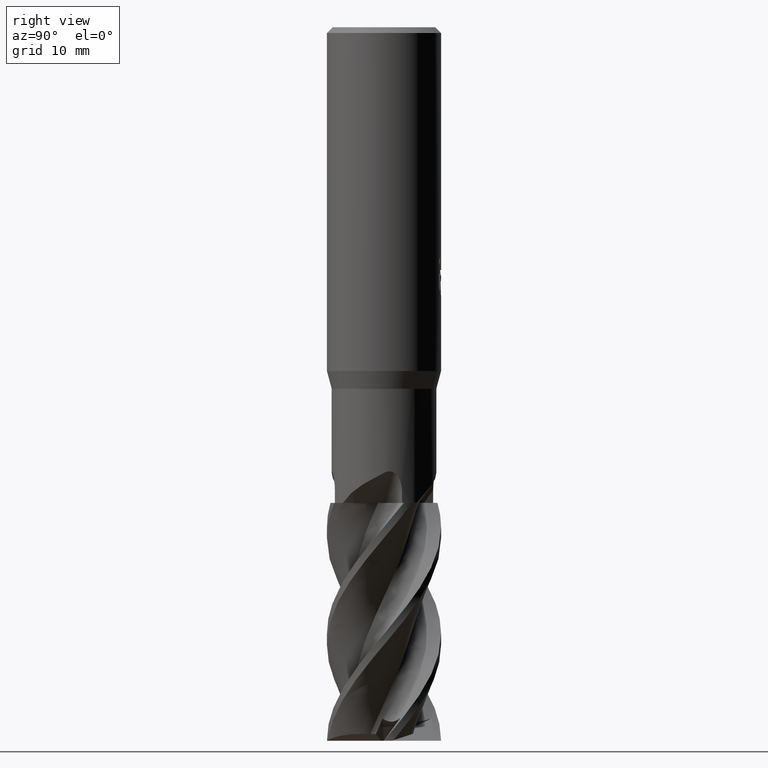
[diagram: clean part render]
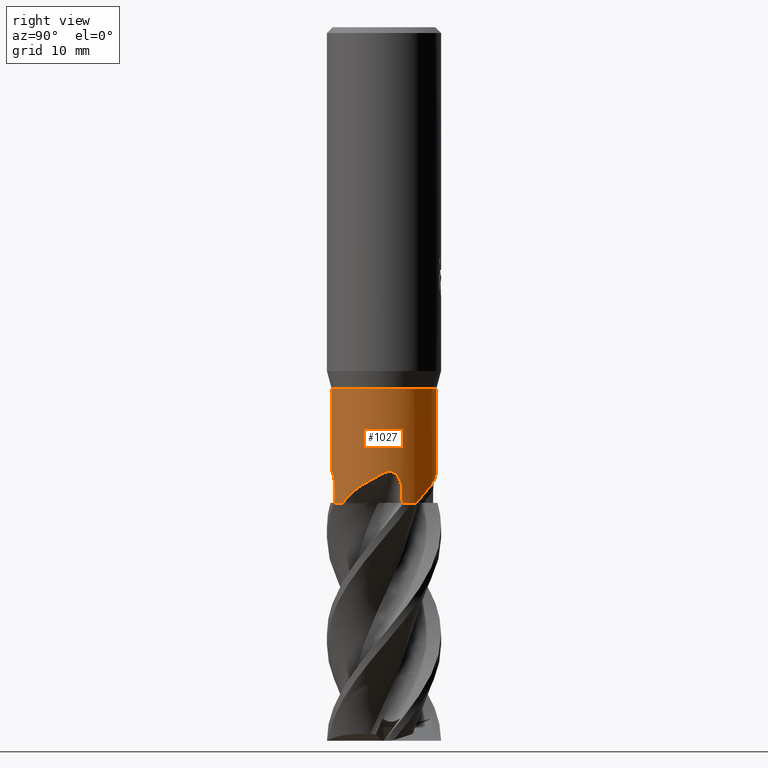
[diagram: same view with one face highlighted and labeled with its STEP entity id]
A machine part, right view. The second image highlights one B-rep face of the part: STEP entity #1027.
In plain terms, the highlighted cylindrical surface (partial cylindrical patch) has radius 5.5 mm, axis along (-0, -0, 1).
Its self-contained STEP definition (entity closure, byte-faithful):
#505=EDGE_CURVE('',#565,#1069,#1460,.T.);
#529=EDGE_CURVE('',#679,#809,#1486,.T.);
#565=VERTEX_POINT('',#1525);
#611=EDGE_CURVE('',#1377,#851,#1576,.T.);
#659=EDGE_CURVE('',#897,#849,#1629,.T.);
#679=VERTEX_POINT('',#1650);
#713=EDGE_CURVE('',#849,#985,#1686,.T.);
#809=VERTEX_POINT('',#1795);
#849=VERTEX_POINT('',#1837);
#851=VERTEX_POINT('',#1839);
#895=EDGE_CURVE('',#897,#851,#1886,.T.);
#897=VERTEX_POINT('',#1888);
#985=VERTEX_POINT('',#1981);
#1005=VERTEX_POINT('',#2003);
#1007=EDGE_CURVE('',#565,#1005,#2005,.T.);
#1019=EDGE_CURVE('',#679,#1069,#2018,.T.);
#1027=ADVANCED_FACE('',(#2026),#2027,.T.);
#1055=VERTEX_POINT('',#2060);
#1069=VERTEX_POINT('',#2076);
#1163=EDGE_CURVE('',#1055,#1377,#2181,.T.);
#1229=EDGE_CURVE('',#1341,#1055,#2255,.T.);
#1325=EDGE_CURVE('',#985,#1005,#2359,.T.);
#1341=VERTEX_POINT('',#2375);
#1377=VERTEX_POINT('',#2416);
#1385=EDGE_CURVE('',#1341,#809,#2424,.T.);
#1460=B_SPLINE_CURVE_WITH_KNOTS('',3,(#2504,#2505,#2506,#2507,#2508,#2509,#2510,#2511),.UNSPECIFIED.,.F.,.F.,(4,2,2,4),(0.0,2.05260454001306,4.32936393877704,6.14717379635785),.UNSPECIFIED.);
#1486=CIRCLE('',#3231,5.49995);
#1525=CARTESIAN_POINT('',(4.32069703443661,3.40309082146079,-50.0000000000019));
#1576=B_SPLINE_CURVE_WITH_KNOTS('',3,(#3851,#3852,#3853,#3854),.UNSPECIFIED.,.F.,.F.,(4,4),(0.0,1.32008462748212),.UNSPECIFIED.);
#1629=B_SPLINE_CURVE_WITH_KNOTS('',3,(#3959,#3960,#3961,#3962,#3963,#3964,#3965,#3966),.UNSPECIFIED.,.F.,.F.,(4,2,2,4),(0.0,2.05260454001313,4.32936393877727,6.14717379635827),.UNSPECIFIED.);
#1650=CARTESIAN_POINT('',(0.0,5.49995,-38.0));
#1686=B_SPLINE_CURVE_WITH_KNOTS('',3,(#4520,#4521,#4522,#4523,#4524,#4525,#4526,#4527,#4528,#4529,#4530,#4531,#4532,#4533),.UNSPECIFIED.,.F.,.F.,(4,2,2,2,2,2,4),(0.0,0.438540590585713,0.813840118689561,1.21334795034173,1.75962200363335,2.40906929027982,3.09416935348457),.UNSPECIFIED.);
#1795=CARTESIAN_POINT('',(6.73527371570538E-016,-5.49995,-38.0));
#1837=CARTESIAN_POINT('',(5.49844950323102,0.12846424762751,-46.7799553798772));
#1839=CARTESIAN_POINT('',(1.90995452340336,-5.15766649959369,-50.0));
#1886=CIRCLE('',#6675,5.49995);
#1888=CARTESIAN_POINT('',(3.40309082146234,-4.32069703443539,-50.0));
#1981=CARTESIAN_POINT('',(5.16624810003383,1.88661881984593,-48.6801224118467));
#2003=CARTESIAN_POINT('',(5.15766649959369,1.90995452340337,-50.0));
#2005=CIRCLE('',#7735,5.49995);
#2018=LINE('',#7767,#7768);
#2026=FACE_OUTER_BOUND('',#7779,.T.);
#2027=CYLINDRICAL_SURFACE('',#7780,5.49995);
#2060=CARTESIAN_POINT('',(0.128464247627506,-5.49844950323102,-46.7799553798772));
#2076=CARTESIAN_POINT('',(-2.77925433996061E-015,5.49994999999997,-46.8485761550256));
#2181=B_SPLINE_CURVE_WITH_KNOTS('',3,(#8402,#8403,#8404,#8405,#8406,#8407,#8408,#8409,#8410,#8411,#8412,#8413,#8414,#8415),.UNSPECIFIED.,.F.,.F.,(4,2,2,2,2,2,4),(0.0,0.438540590585726,0.813840118689592,1.21334795034176,1.75962200363322,2.40906929027944,3.09416935348403),.UNSPECIFIED.);
#2255=B_SPLINE_CURVE_WITH_KNOTS('',3,(#8948,#8949,#8950,#8951,#8952,#8953,#8954,#8955),.UNSPECIFIED.,.F.,.F.,(4,2,2,4),(0.0,2.05260454001309,4.32936393877716,6.1471737963582),.UNSPECIFIED.);
#2359=B_SPLINE_CURVE_WITH_KNOTS('',3,(#9797,#9798,#9799,#9800),.UNSPECIFIED.,.F.,.F.,(4,4),(0.0,1.3200846274941),.UNSPECIFIED.);
#2375=CARTESIAN_POINT('',(4.33356657443583E-015,-5.49994999999999,-46.8485761550256));
#2416=CARTESIAN_POINT('',(1.88661881984593,-5.16624810003383,-48.6801224118467));
#2424=LINE('',#10427,#10428);
#2504=CARTESIAN_POINT('',(4.32069703443661,3.40309082146079,-50.0000000000019));
#2505=CARTESIAN_POINT('',(4.01622058734347,3.78966601178922,-49.5246207553544));
#2506=CARTESIAN_POINT('',(3.64320537147409,4.15871196733255,-49.1153642329935));
#2507=CARTESIAN_POINT('',(2.67264667295679,4.84748644752718,-48.3184352244571));
#2508=CARTESIAN_POINT('',(2.08602911005891,5.13239437357895,-47.9625082932729));
#2509=CARTESIAN_POINT('',(0.930284828555402,5.44672058306723,-47.330858510529));
#2510=CARTESIAN_POINT('',(0.400775827371077,5.51081452140736,-47.0639981679337));
#2511=CARTESIAN_POINT('',(-0.128464247627568,5.49844950323103,-46.7799553798772));
#3231=AXIS2_PLACEMENT_3D('',#10681,#10682,#10683);
#3851=CARTESIAN_POINT('',(1.88661881984595,-5.16624810003383,-48.6801224118467));
#3852=CARTESIAN_POINT('',(1.89494737918478,-5.16320666329161,-49.1200612821674));
#3853=CARTESIAN_POINT('',(1.90273135105598,-5.16034133921337,-49.5600386199851));
#3854=CARTESIAN_POINT('',(1.9099545234034,-5.15766649959367,-50.000000000002));
#3959=CARTESIAN_POINT('',(3.40309082146076,-4.32069703443663,-50.0000000000019));
#3960=CARTESIAN_POINT('',(3.7896660117892,-4.01622058734348,-49.5246207553544));
#3961=CARTESIAN_POINT('',(4.15871196733253,-3.64320537147411,-49.1153642329935));
#3962=CARTESIAN_POINT('',(4.84748644752717,-2.67264667295681,-48.3184352244571));
#3963=CARTESIAN_POINT('',(5.13239437357893,-2.0860291100589,-47.9625082932729));
#3964=CARTESIAN_POINT('',(5.44672058306721,-0.930284828555466,-47.330858510529));
#3965=CARTESIAN_POINT('',(5.51081452140735,-0.400775827371127,-47.0639981679338));
#3966=CARTESIAN_POINT('',(5.49844950323103,0.128464247627546,-46.7799553798772));
#4520=CARTESIAN_POINT('',(5.49844950323088,0.128464247633871,-46.7799553801384));
#4521=CARTESIAN_POINT('',(5.4953011042546,0.263220128012806,-46.7233904595447));
#4522=CARTESIAN_POINT('',(5.48696421004083,0.404945012029382,-46.6891570378781));
#4523=CARTESIAN_POINT('',(5.45986639133504,0.674472824829062,-46.6857818872239));
#4524=CARTESIAN_POINT('',(5.44345431012151,0.7948530748116,-46.7081008115535));
#4525=CARTESIAN_POINT('',(5.40373016328143,1.03174084036339,-46.801883908265));
#4526=CARTESIAN_POINT('',(5.38108798590281,1.14163485347553,-46.8740769644606));
#4527=CARTESIAN_POINT('',(5.32778878251192,1.37214841981412,-47.0820983841991));
#4528=CARTESIAN_POINT('',(5.29755471982541,1.48108462277346,-47.2306448038557));
#4529=CARTESIAN_POINT('',(5.24087746991992,1.67161916794839,-47.5772524868296));
#4530=CARTESIAN_POINT('',(5.21525489996716,1.74743997293688,-47.78497410029));
#4531=CARTESIAN_POINT('',(5.17856161147075,1.85344704507502,-48.2184200132167));
#4532=CARTESIAN_POINT('',(5.16784053812714,1.88225814550732,-48.4497788411469));
#4533=CARTESIAN_POINT('',(5.16624810006813,1.88661881975201,-48.6801224118474));
#6675=AXIS2_PLACEMENT_3D('',#11119,#11120,#11121);
#7735=AXIS2_PLACEMENT_3D('',#11197,#11198,#11199);
#7767=CARTESIAN_POINT('',(-6.73527371570538E-016,5.49995,-44.0));
#7768=VECTOR('',#11209,1.0);
#7779=EDGE_LOOP('',(#11215,#11216,#11217,#11218,#11219,#11220,#11221,#11222,#11223,#11224,#11225,#11226));
#7780=AXIS2_PLACEMENT_3D('',#11227,#11228,#11229);
#8402=CARTESIAN_POINT('',(0.128464247633866,-5.49844950323088,-46.7799553801384));
#8403=CARTESIAN_POINT('',(0.263220128012805,-5.4953011042546,-46.7233904595447));
#8404=CARTESIAN_POINT('',(0.404945012029379,-5.48696421004083,-46.6891570378781));
#8405=CARTESIAN_POINT('',(0.674472824829059,-5.45986639133504,-46.6857818872239));
#8406=CARTESIAN_POINT('',(0.794853074811599,-5.44345431012151,-46.7081008115535));
#8407=CARTESIAN_POINT('',(1.03174084036337,-5.40373016328144,-46.801883908265));
#8408=CARTESIAN_POINT('',(1.14163485347551,-5.38108798590281,-46.8740769644606));
#8409=CARTESIAN_POINT('',(1.37214841981411,-5.32778878251192,-47.0820983841991));
#8410=CARTESIAN_POINT('',(1.48108462277344,-5.2975547198254,-47.2306448038556));
#8411=CARTESIAN_POINT('',(1.67161916794839,-5.2408774699199,-47.5772524868296));
#8412=CARTESIAN_POINT('',(1.74743997293688,-5.21525489996716,-47.7849741002901));
#8413=CARTESIAN_POINT('',(1.85344704507501,-5.17856161147076,-48.2184200132167));
#8414=CARTESIAN_POINT('',(1.88225814550732,-5.16784053812714,-48.4497788411469));
#8415=CARTESIAN_POINT('',(1.88661881975201,-5.16624810006813,-48.6801224118474));
#8948=CARTESIAN_POINT('',(-4.32069703443664,-3.40309082146075,-50.000000000002));
#8949=CARTESIAN_POINT('',(-4.0162205873435,-3.78966601178918,-49.5246207553544));
#8950=CARTESIAN_POINT('',(-3.64320537147412,-4.15871196733252,-49.1153642329935));
#8951=CARTESIAN_POINT('',(-2.67264667295682,-4.84748644752717,-48.3184352244571));
#8952=CARTESIAN_POINT('',(-2.0860291100589,-5.13239437357893,-47.9625082932729));
#8953=CARTESIAN_POINT('',(-0.930284828555461,-5.44672058306721,-47.330858510529));
#8954=CARTESIAN_POINT('',(-0.400775827371127,-5.51081452140735,-47.0639981679338));
#8955=CARTESIAN_POINT('',(0.128464247627541,-5.49844950323102,-46.7799553798772));
#9797=CARTESIAN_POINT('',(5.16624810003383,1.88661881984596,-48.6801224118467));
#9798=CARTESIAN_POINT('',(5.16320666329159,1.89494737918486,-49.1200612821714));
#9799=CARTESIAN_POINT('',(5.16034133921336,1.90273135105601,-49.560038619987));
#9800=CARTESIAN_POINT('',(5.15766649959368,1.9099545234034,-50.000000000002));
#10427=CARTESIAN_POINT('',(6.73527371570538E-016,-5.49995,-44.0));
#10428=VECTOR('',#11692,1.0);
#10681=CARTESIAN_POINT('',(0.0,0.0,-38.0));
#10682=DIRECTION('',(0.0,0.0,-1.0));
#10683=DIRECTION('',(0.0,1.0,0.0));
#11119=CARTESIAN_POINT('',(0.0,0.0,-50.0));
#11120=DIRECTION('',(0.0,0.0,-1.0));
#11121=DIRECTION('',(0.0,1.0,0.0));
#11197=CARTESIAN_POINT('',(0.0,0.0,-50.0));
#11198=DIRECTION('',(0.0,0.0,-1.0));
#11199=DIRECTION('',(0.0,1.0,0.0));
#11209=DIRECTION('',(0.0,0.0,-1.0));
#11215=ORIENTED_EDGE('',*,*,#1019,.F.);
#11216=ORIENTED_EDGE('',*,*,#529,.T.);
#11217=ORIENTED_EDGE('',*,*,#1385,.F.);
#11218=ORIENTED_EDGE('',*,*,#1229,.T.);
#11219=ORIENTED_EDGE('',*,*,#1163,.T.);
#11220=ORIENTED_EDGE('',*,*,#611,.T.);
#11221=ORIENTED_EDGE('',*,*,#895,.F.);
#11222=ORIENTED_EDGE('',*,*,#659,.T.);
#11223=ORIENTED_EDGE('',*,*,#713,.T.);
#11224=ORIENTED_EDGE('',*,*,#1325,.T.);
#11225=ORIENTED_EDGE('',*,*,#1007,.F.);
#11226=ORIENTED_EDGE('',*,*,#505,.T.);
#11227=CARTESIAN_POINT('',(0.0,0.0,-44.0));
#11228=DIRECTION('',(-0.0,-0.0,1.0));
#11229=DIRECTION('',(0.0,1.0,0.0));
#11692=DIRECTION('',(-0.0,-0.0,1.0));